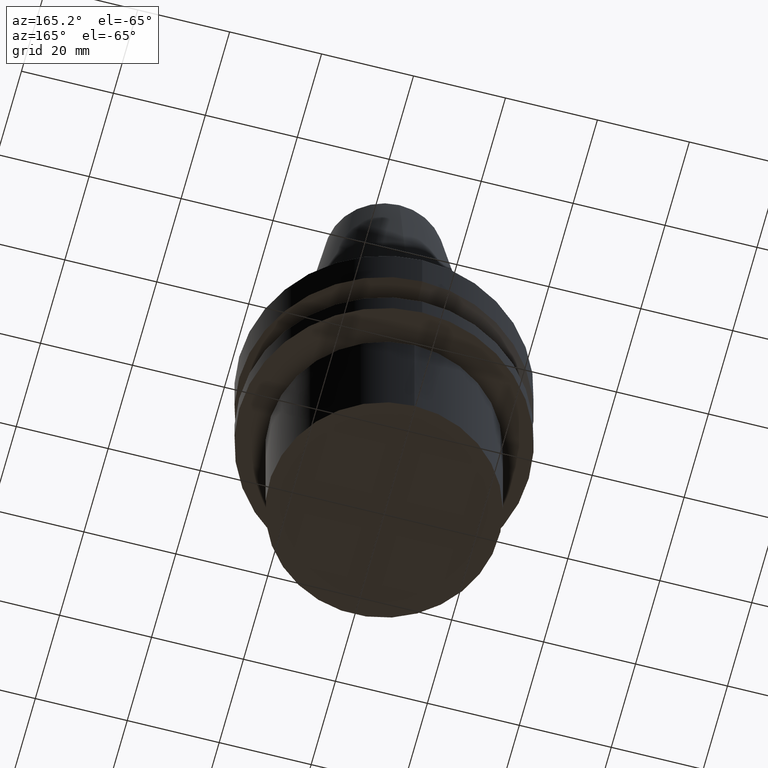
[diagram: clean part render]
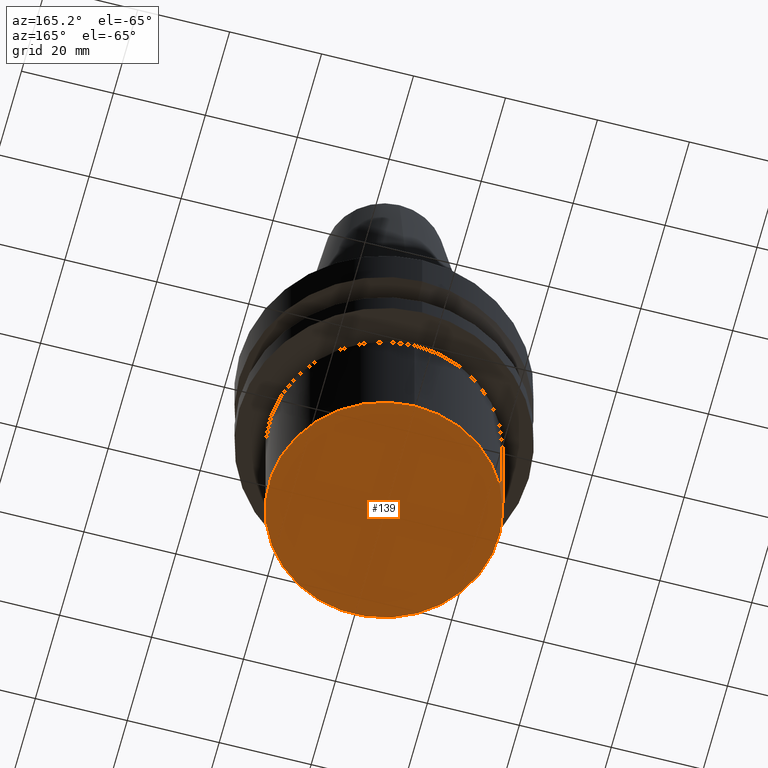
[diagram: same view with one face highlighted and labeled with its STEP entity id]
A machine part, auxiliary view. The second image highlights one B-rep face of the part: STEP entity #139.
In plain terms, the highlighted planar face has unit normal (0, -0, -1).
Its self-contained STEP definition (entity closure, byte-faithful):
#122=EDGE_CURVE('Unnamed[1]',#260,#260,#261,.T.);
#139=ADVANCED_FACE('Unnamed[1]',(#286),#287,.T.);
#260=VERTEX_POINT('',#431);
#261=CIRCLE('',#432,25.0);
#286=FACE_OUTER_BOUND('',#464,.T.);
#287=PLANE('',#465);
#431=CARTESIAN_POINT('',(3.67394039744206E-015,25.0,-60.0));
#432=AXIS2_PLACEMENT_3D('',#590,#591,#592);
#464=EDGE_LOOP('',(#618));
#465=AXIS2_PLACEMENT_3D('',#619,#620,#621);
#590=CARTESIAN_POINT('',(3.67394039744206E-015,-1.84161068403555E-014,-60.0));
#591=DIRECTION('',(6.12323399573677E-017,-7.56206108338741E-016,-1.0));
#592=DIRECTION('',(4.14771167728668E-032,1.0,-7.56206108338741E-016));
#618=ORIENTED_EDGE('',*,*,#122,.T.);
#619=CARTESIAN_POINT('',(3.67394039744206E-015,12.5,-60.0));
#620=DIRECTION('',(6.12323399573677E-017,-7.30186602997385E-016,-1.0));
#621=DIRECTION('',(3.98838815762823E-032,1.0,-7.30186602997385E-016));